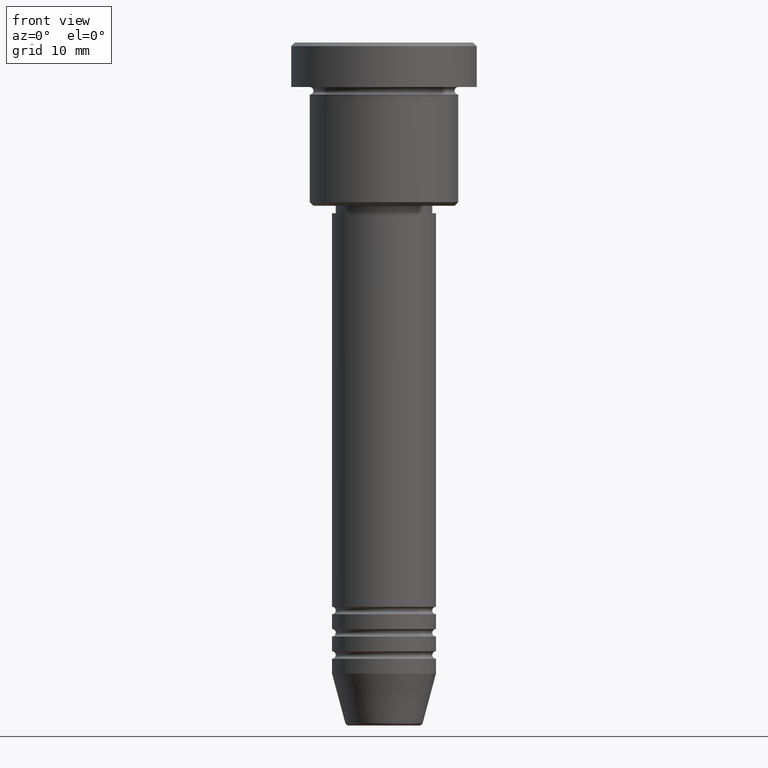
[diagram: clean part render]
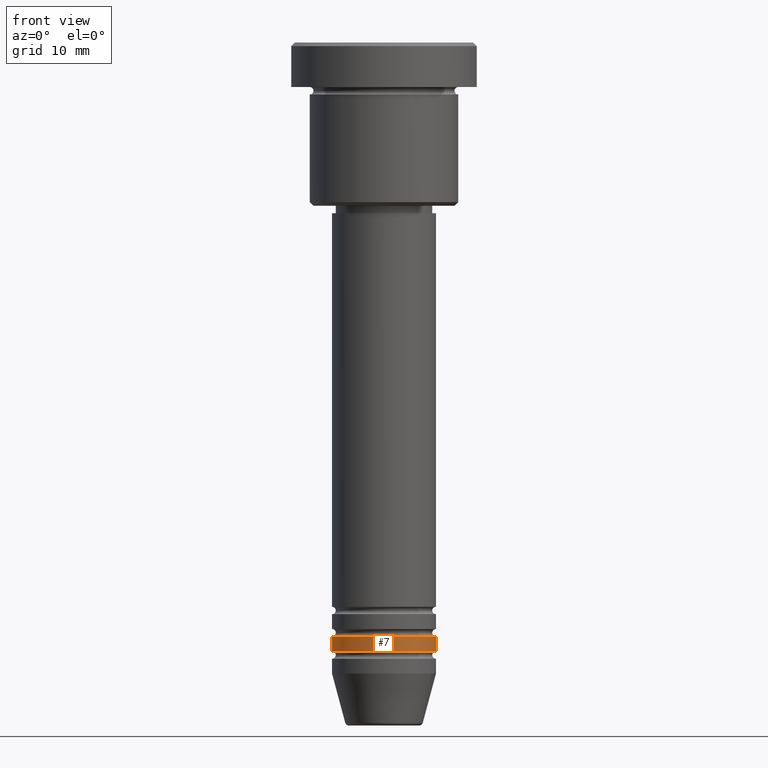
[diagram: same view with one face highlighted and labeled with its STEP entity id]
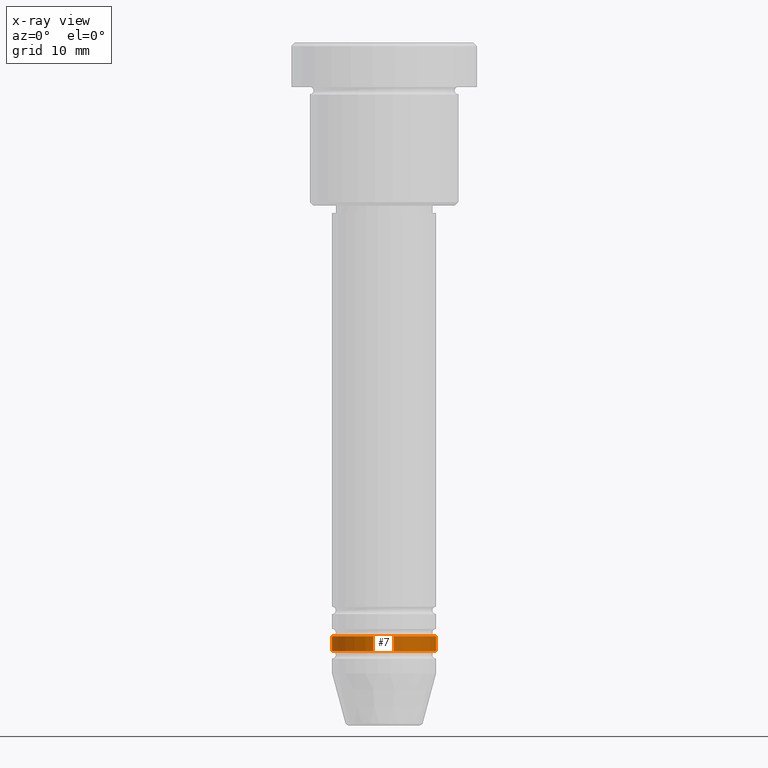
[diagram: x-ray of the same camera — body ghosted, the highlighted face saturated]
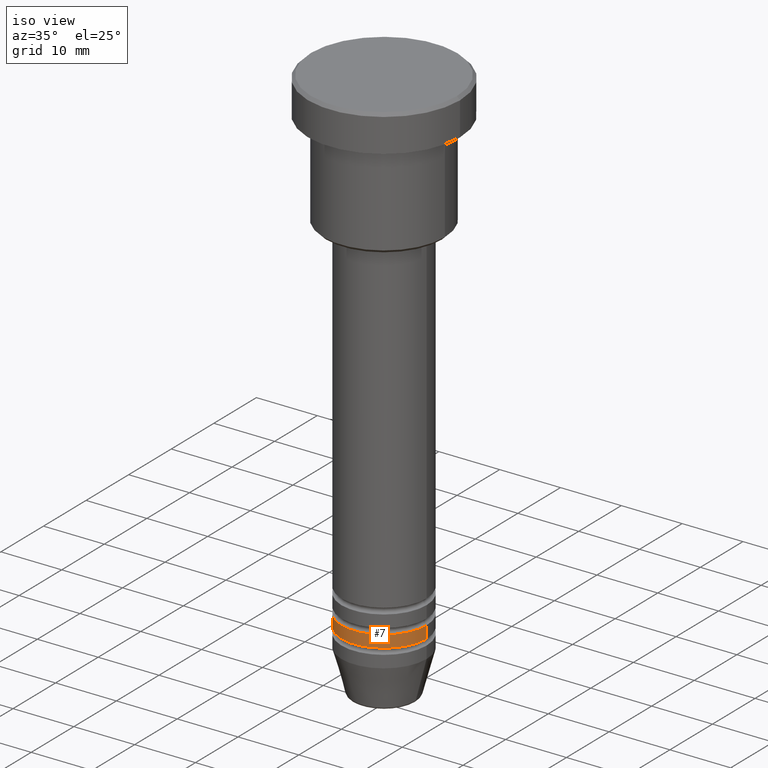
[diagram: same view with one face highlighted and labeled with its STEP entity id]
A machine part, front view. The second image highlights one B-rep face of the part: STEP entity #7.
The next image is the same camera in x-ray: the body ghosted, the highlighted face saturated — about 0% of this face is hidden behind the body in this view.
A second angle (iso view) of the same face is appended — the face is thin or edge-on in the first view.
In plain terms, the highlighted cylindrical surface (partial cylindrical patch) has radius 7 mm, axis along (-0, -0, 1).
Its self-contained STEP definition (entity closure, byte-faithful):
#2 = CARTESIAN_POINT ( 'NONE',  ( 0.000000000000000000, 0.000000000000000000, -79.99999999999997158 ) ) ;
#6 = VERTEX_POINT ( 'NONE', #690 ) ;
#7 = ADVANCED_FACE ( 'NONE', ( #309 ), #784, .T. ) ;
#24 = ORIENTED_EDGE ( 'NONE', *, *, #171, .F. ) ;
#58 = VECTOR ( 'NONE', #1143, 1000.000000000000000 ) ;
#91 = ORIENTED_EDGE ( 'NONE', *, *, #778, .F. ) ;
#171 = EDGE_CURVE ( 'NONE', #1049, #923, #908, .T. ) ;
#177 = CARTESIAN_POINT ( 'NONE',  ( -7.000000000000000000, 8.572527594031473190E-16, -79.99999999999997158 ) ) ;
#224 = ORIENTED_EDGE ( 'NONE', *, *, #530, .T. ) ;
#237 = DIRECTION ( 'NONE',  ( -0.000000000000000000, -0.000000000000000000, 1.000000000000000000 ) ) ;
#249 = VERTEX_POINT ( 'NONE', #394 ) ;
#309 = FACE_OUTER_BOUND ( 'NONE', #667, .T. ) ;
#329 = CARTESIAN_POINT ( 'NONE',  ( 0.000000000000000000, 0.000000000000000000, 0.000000000000000000 ) ) ;
#339 = AXIS2_PLACEMENT_3D ( 'NONE', #329, #237, #517 ) ;
#379 = CIRCLE ( 'NONE', #1142, 7.000000000000000000 ) ;
#394 = CARTESIAN_POINT ( 'NONE',  ( 7.000000000000000000, 0.000000000000000000, -81.99999999999997158 ) ) ;
#427 = LINE ( 'NONE', #600, #58 ) ;
#469 = CIRCLE ( 'NONE', #701, 7.000000000000000000 ) ;
#470 = DIRECTION ( 'NONE',  ( -0.000000000000000000, -0.000000000000000000, 1.000000000000000000 ) ) ;
#517 = DIRECTION ( 'NONE',  ( 1.000000000000000000, 0.000000000000000000, 0.000000000000000000 ) ) ;
#530 = EDGE_CURVE ( 'NONE', #1049, #249, #469, .T. ) ;
#547 = DIRECTION ( 'NONE',  ( -0.000000000000000000, -0.000000000000000000, 1.000000000000000000 ) ) ;
#600 = CARTESIAN_POINT ( 'NONE',  ( 7.000000000000000000, 0.000000000000000000, 0.000000000000000000 ) ) ;
#629 = EDGE_CURVE ( 'NONE', #249, #6, #427, .T. ) ;
#667 = EDGE_LOOP ( 'NONE', ( #24, #224, #675, #91 ) ) ;
#675 = ORIENTED_EDGE ( 'NONE', *, *, #629, .T. ) ;
#690 = CARTESIAN_POINT ( 'NONE',  ( 7.000000000000000000, 0.000000000000000000, -79.99999999999997158 ) ) ;
#701 = AXIS2_PLACEMENT_3D ( 'NONE', #844, #470, #743 ) ;
#743 = DIRECTION ( 'NONE',  ( 1.000000000000000000, 0.000000000000000000, 0.000000000000000000 ) ) ;
#761 = CARTESIAN_POINT ( 'NONE',  ( -7.000000000000000000, 8.572527594031473190E-16, -81.99999999999997158 ) ) ;
#778 = EDGE_CURVE ( 'NONE', #923, #6, #379, .T. ) ;
#784 = CYLINDRICAL_SURFACE ( 'NONE', #339, 7.000000000000000000 ) ;
#803 = DIRECTION ( 'NONE',  ( 1.000000000000000000, 0.000000000000000000, 0.000000000000000000 ) ) ;
#813 = DIRECTION ( 'NONE',  ( -0.000000000000000000, -0.000000000000000000, 1.000000000000000000 ) ) ;
#826 = CARTESIAN_POINT ( 'NONE',  ( -7.000000000000000000, 8.572527594031473190E-16, 0.000000000000000000 ) ) ;
#844 = CARTESIAN_POINT ( 'NONE',  ( 0.000000000000000000, 0.000000000000000000, -81.99999999999997158 ) ) ;
#854 = VECTOR ( 'NONE', #547, 1000.000000000000000 ) ;
#908 = LINE ( 'NONE', #826, #854 ) ;
#923 = VERTEX_POINT ( 'NONE', #177 ) ;
#1049 = VERTEX_POINT ( 'NONE', #761 ) ;
#1142 = AXIS2_PLACEMENT_3D ( 'NONE', #2, #813, #803 ) ;
#1143 = DIRECTION ( 'NONE',  ( -0.000000000000000000, -0.000000000000000000, 1.000000000000000000 ) ) ;